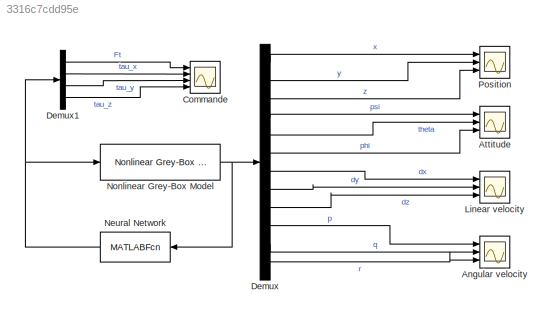
MODEL slx_3316c7cdd95e
KIND model
CONFIG AbsTol = auto
CONFIG EnableMultiTasking = on
CONFIG FixedStep = dt
CONFIG MaxStep = auto
CONFIG MinStep = auto
CONFIG RelTol = 1e-3
CONFIG SampleTimeConstraint = Unconstrained
CONFIG Solver = FixedStepAuto
CONFIG SolverName = FixedStepAuto
CONFIG StartTime = 0.0
CONFIG StopTime = 1
BLOCK [Scope] Angular velocity
  Floating = off
  NumInputPorts = 3
  Ports = [3]
  ScopeSpecificationString = Simulink.scopes.TimeScopeBlockCfg('CurrentConfiguration', extmgr.ConfigurationSet(extmgr.Configuration('Core','General UI',true),extmgr.Configuration('Core','Source UI',true),extmgr.Configuration('Sources','WiredSimulink',true,'DataLoggingDecimation','1','DataLoggingDecimateData',true,'DataLoggingSaveFormat','Array','DataLoggingVariableName','ScopeData2'),extmgr.Configuration('Visuals','Time Domai...<+2935ch>
BLOCK [Scope] Attitude
  Floating = off
  NumInputPorts = 3
  Ports = [3]
  ScopeSpecificationString = Simulink.scopes.TimeScopeBlockCfg('CurrentConfiguration', extmgr.ConfigurationSet(extmgr.Configuration('Core','General UI',true),extmgr.Configuration('Core','Source UI',true),extmgr.Configuration('Sources','WiredSimulink',true,'DataLoggingDecimation','1','DataLoggingDecimateData',true,'DataLoggingSaveFormat','Array','DataLoggingVariableName','ScopeData1'),extmgr.Configuration('Visuals','Time Domai...<+2950ch>
BLOCK [Scope] Commande
  Floating = off
  NumInputPorts = 4
  Ports = [4]
  ScopeSpecificationString = Simulink.scopes.TimeScopeBlockCfg('CurrentConfiguration', extmgr.ConfigurationSet(extmgr.Configuration('Core','General UI',true),extmgr.Configuration('Core','Source UI',true),extmgr.Configuration('Sources','WiredSimulink',true,'DataLoggingDecimation','1','DataLoggingDecimateData',true,'DataLoggingSaveFormat','Array','DataLoggingVariableName','ScopeData1'),extmgr.Configuration('Visuals','Time Domai...<+2951ch>
BLOCK [Demux] Demux
  DisplayOption = bar
  Outputs = 12
  Ports = [1, 12]
BLOCK [Demux] Demux1
  DisplayOption = bar
  Ports = [1, 4]
BLOCK [Scope] Linear velocity
  Floating = off
  NumInputPorts = 3
  Ports = [3]
  ScopeSpecificationString = Simulink.scopes.TimeScopeBlockCfg('CurrentConfiguration', extmgr.ConfigurationSet(extmgr.Configuration('Core','General UI',true),extmgr.Configuration('Core','Source UI',true),extmgr.Configuration('Sources','WiredSimulink',true,'DataLoggingDecimation','1','DataLoggingDecimateData',true,'DataLoggingSaveFormat','Array','DataLoggingVariableName','ScopeData1'),extmgr.Configuration('Visuals','Time Domai...<+2937ch>
BLOCK [MATLABFcn] Neural Network
  MATLABFcn = net
  Ports = [1, 1]
BLOCK [Reference] Nonlinear Grey-Box Model  REF=slident/Models/Nonlinear Grey-Box Model  (lib defined in mdl_f7d4911ca73a)
  Ports = [1, 1]
  SourceBlock = slident/Models/Nonlinear Grey-Box Model
  SourceProductBaseCode = ID
  SourceProductName = System Identification Toolbox
  SourceType = Nonlinear Grey-Box Model
BLOCK [Scope] Position
  Floating = off
  NumInputPorts = 3
  Ports = [3]
  ScopeSpecificationString = Simulink.scopes.TimeScopeBlockCfg('CurrentConfiguration', extmgr.ConfigurationSet(extmgr.Configuration('Core','General UI',true),extmgr.Configuration('Core','Source UI',true),extmgr.Configuration('Sources','WiredSimulink',true,'DataLoggingDecimation','1','DataLoggingDecimateData',true,'DataLoggingSaveFormat','Array'),extmgr.Configuration('Visuals','Time Domain',true,'SerializedDisplays',{struct('M...<+2899ch>
LINE Demux1:1 -> Commande:1
LINE Demux1:2 -> Commande:2
LINE Demux1:3 -> Commande:3
LINE Demux1:4 -> Commande:4
LINE Demux:1 -> Position:1
LINE Demux:10 -> Angular velocity:1
LINE Demux:11 -> Angular velocity:2
LINE Demux:12 -> Angular velocity:3
LINE Demux:2 -> Position:2
LINE Demux:3 -> Position:3
LINE Demux:4 -> Attitude:1
LINE Demux:5 -> Attitude:2
LINE Demux:6 -> Attitude:3
LINE Demux:7 -> Linear velocity:1
LINE Demux:8 -> Linear velocity:2
LINE Demux:9 -> Linear velocity:3
NET Neural Network:1 -> Demux1:1, Nonlinear Grey-Box Model:1
NET Nonlinear Grey-Box Model:1 -> Demux:1, Neural Network:1
note: NET lines group one-source signal fan-out (src -> all destinations, sorted); 1:1 wires keep LINE
